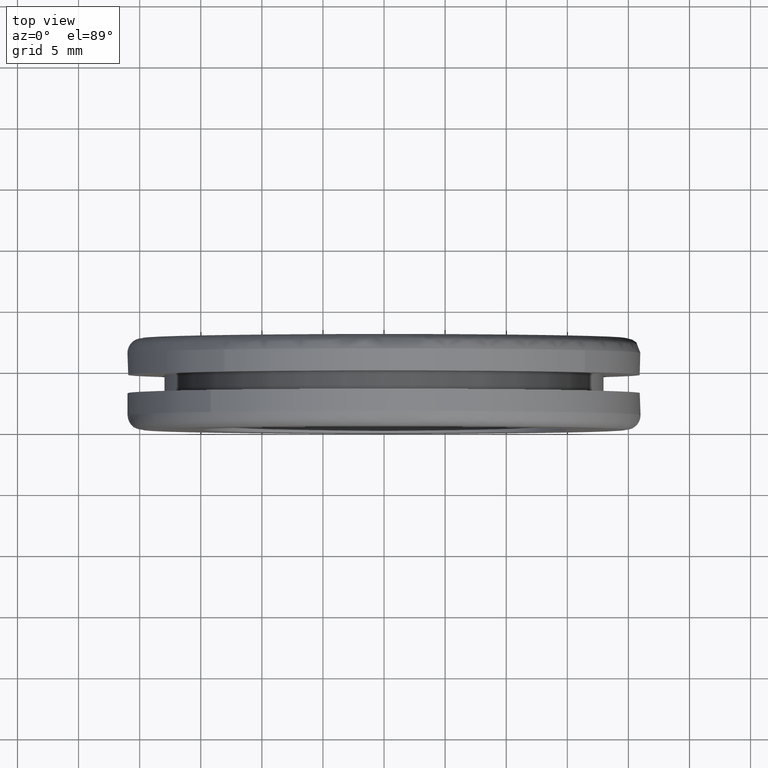
[diagram: clean part render]
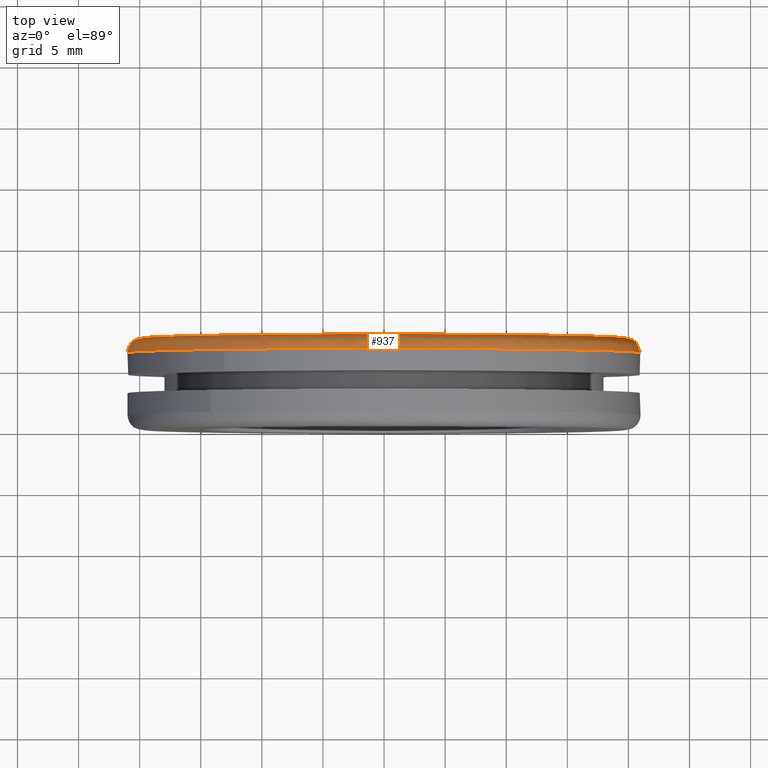
[diagram: same view with one face highlighted and labeled with its STEP entity id]
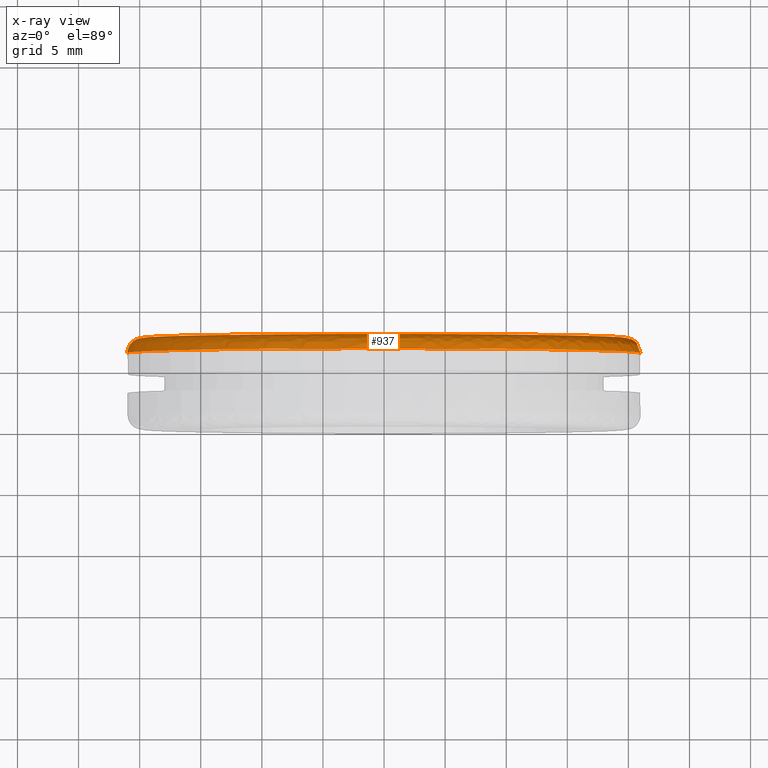
[diagram: x-ray of the same camera — body ghosted, the highlighted face saturated]
A machine part, top view. The second image highlights one B-rep face of the part: STEP entity #937.
The next image is the same camera in x-ray: the body ghosted, the highlighted face saturated — about 0% of this face is hidden behind the body in this view.
In plain terms, the highlighted face is a freeform B-spline surface patch.
Its self-contained STEP definition (entity closure, byte-faithful):
#468=CARTESIAN_POINT('',(-13.072806069207591,6.300000000011240,16.434772328112299));
#469=VERTEX_POINT('',#468);
#470=CARTESIAN_POINT('',(-21.0,6.300000000052002,8.851079E-016));
#471=VERTEX_POINT('',#470);
#472=CARTESIAN_POINT('',(-13.072806069207587,6.300000000011240,16.434772328112302));
#473=CARTESIAN_POINT('',(-20.999999999999943,6.300000000026920,10.129198581101342));
#474=CARTESIAN_POINT('',(-21.000000000000004,6.300000000052002,8.851079E-016));
#482=(BOUNDED_CURVE()B_SPLINE_CURVE(2,(#472,#473,#474),.UNSPECIFIED.,.F.,.U.)B_SPLINE_CURVE_WITH_KNOTS((3,3),(0.607863865415925,0.749999999999999),.UNSPECIFIED.)CURVE()GEOMETRIC_REPRESENTATION_ITEM()RATIONAL_B_SPLINE_CURVE((0.856305622490842,0.833477160127873,0.999999999999998))REPRESENTATION_ITEM(''));
#483=EDGE_CURVE('',#469,#471,#482,.T.);
#500=CARTESIAN_POINT('',(20.859544414485921,6.300000000055606,-2.424748815875383));
#501=VERTEX_POINT('',#500);
#515=CARTESIAN_POINT('',(16.434772329288549,6.299999999999930,13.072806067728861));
#516=VERTEX_POINT('',#515);
#517=CARTESIAN_POINT('',(20.859544414485928,6.300000000055606,-2.424748815875383));
#518=CARTESIAN_POINT('',(20.999999999999996,6.300000000000000,-1.216442411062318));
#519=CARTESIAN_POINT('',(21.0,6.300000000000000,-3.061516E-016));
#520=CARTESIAN_POINT('',(21.000000000000004,6.300000000000000,7.333527368817955));
#521=CARTESIAN_POINT('',(16.434772329288549,6.299999999999930,13.072806067728857));
#529=(BOUNDED_CURVE()B_SPLINE_CURVE(2,(#517,#518,#519,#520,#521),.UNSPECIFIED.,.F.,.U.)B_SPLINE_CURVE_WITH_KNOTS((3,2,3),(0.229999999999889,0.250000000000000,0.357863865402305),.UNSPECIFIED.)CURVE()GEOMETRIC_REPRESENTATION_ITEM()RATIONAL_B_SPLINE_CURVE((0.956886118190442,0.976568542494794,1.0,0.873629621074632,0.856305622495217))REPRESENTATION_ITEM(''));
#530=EDGE_CURVE('',#501,#516,#529,.T.);
#595=CARTESIAN_POINT('',(0.0,6.300000000000000,21.0));
#596=VERTEX_POINT('',#595);
#597=CARTESIAN_POINT('',(0.0,6.300000000000000,21.0));
#598=CARTESIAN_POINT('',(-7.333527369877913,6.300000000000001,20.999999999999996));
#599=CARTESIAN_POINT('',(-13.072806069207587,6.300000000011240,16.434772328112302));
#607=(BOUNDED_CURVE()B_SPLINE_CURVE(2,(#597,#598,#599),.UNSPECIFIED.,.F.,.U.)B_SPLINE_CURVE_WITH_KNOTS((3,3),(0.500000000000000,0.607863865415925),.UNSPECIFIED.)CURVE()GEOMETRIC_REPRESENTATION_ITEM()RATIONAL_B_SPLINE_CURVE((1.0,0.873629621058675,0.856305622490842))REPRESENTATION_ITEM(''));
#608=EDGE_CURVE('',#596,#469,#607,.T.);
#640=CARTESIAN_POINT('',(16.434772329288549,6.299999999999930,13.072806067728857));
#641=CARTESIAN_POINT('',(10.129198582265900,6.299999999999999,21.0));
#642=CARTESIAN_POINT('',(0.0,6.300000000000000,21.0));
#650=(BOUNDED_CURVE()B_SPLINE_CURVE(2,(#640,#641,#642),.UNSPECIFIED.,.F.,.U.)B_SPLINE_CURVE_WITH_KNOTS((3,3),(0.357863865402305,0.500000000000000),.UNSPECIFIED.)CURVE()GEOMETRIC_REPRESENTATION_ITEM()RATIONAL_B_SPLINE_CURVE((0.856305622495217,0.833477160111916,1.0))REPRESENTATION_ITEM(''));
#651=EDGE_CURVE('',#516,#596,#650,.T.);
#842=CARTESIAN_POINT('',(19.584905655962345,7.497110752785397,-2.276580406893847));
#843=CARTESIAN_POINT('',(19.716778334758423,7.497110752785396,-1.142109616844359));
#844=CARTESIAN_POINT('',(19.716778334758416,7.497110752785395,-3.621794E-015));
#845=CARTESIAN_POINT('',(19.716778334758427,7.497110752785394,19.716778334758409));
#846=CARTESIAN_POINT('',(4.829058E-015,7.497110752785395,19.716778334758416));
#847=CARTESIAN_POINT('',(-19.716778334758409,7.497110752785394,19.716778334758427));
#848=CARTESIAN_POINT('',(-19.716778334758416,7.497110752785395,6.036323E-015));
#849=CARTESIAN_POINT('',(20.952207806636945,7.592803943791779,-2.435517771270782));
#850=CARTESIAN_POINT('',(21.093287055048435,7.592803943791781,-1.221844947861489));
#851=CARTESIAN_POINT('',(21.093287055048425,7.592803943791780,-3.874646E-015));
#852=CARTESIAN_POINT('',(21.093287055048421,7.592803943791777,21.093287055048417));
#853=CARTESIAN_POINT('',(5.166195E-015,7.592803943791780,21.093287055048425));
#854=CARTESIAN_POINT('',(-21.093287055048417,7.592803943791777,21.093287055048425));
#855=CARTESIAN_POINT('',(-21.093287055048425,7.592803943791780,6.457743E-015));
#856=CARTESIAN_POINT('',(20.856643796430927,6.216331072732919,-2.424409259590359));
#857=CARTESIAN_POINT('',(20.997079575721664,6.216331072732920,-1.216272055298318));
#858=CARTESIAN_POINT('',(20.997079575721667,6.216331072732919,-3.856974E-015));
#859=CARTESIAN_POINT('',(20.997079575721664,6.216331072732920,20.997079575721664));
#860=CARTESIAN_POINT('',(5.142631E-015,6.216331072732919,20.997079575721667));
#861=CARTESIAN_POINT('',(-20.997079575721664,6.216331072732920,20.997079575721664));
#862=CARTESIAN_POINT('',(-20.997079575721667,6.216331072732919,6.428289E-015));
#870=(BOUNDED_SURFACE()B_SPLINE_SURFACE(2,2,((#842,#849,#856),(#843,#850,#857),(#844,#851,#858),(#845,#852,#859),(#846,#853,#860),(#847,#854,#861),(#848,#855,#862)),.UNSPECIFIED.,.F.,.F.,.U.)B_SPLINE_SURFACE_WITH_KNOTS((3,2,2,3),(3,3),(0.0,2.783125387559395,37.572225909523503,72.361326431487598),(0.0,2.186845457319874),.UNSPECIFIED.)GEOMETRIC_REPRESENTATION_ITEM()RATIONAL_B_SPLINE_SURFACE(((0.876476107372700,0.573569792434621,0.871620813974785),(0.894504543896973,0.585367680030376,0.889549380864171),(0.915966964431935,0.599412781759712,0.910892908998245),(0.647686451892679,0.423848842712185,0.644098552887400),(0.915966964431935,0.599412781759712,0.910892908998245),(0.647686451892679,0.423848842712185,0.644098552887400),(0.915966964431935,0.599412781759712,0.910892908998245)))REPRESENTATION_ITEM('')SURFACE());
#871=ORIENTED_EDGE('',*,*,#651,.F.);
#872=ORIENTED_EDGE('',*,*,#530,.F.);
#873=CARTESIAN_POINT('',(19.667570450064581,7.499999999999999,-2.286191740977825));
#874=VERTEX_POINT('',#873);
#875=CARTESIAN_POINT('',(19.667570450064581,7.499999999999999,-2.286191740977825));
#876=CARTESIAN_POINT('',(20.859544414376245,7.499999995718756,-2.424748815855713));
#877=CARTESIAN_POINT('',(20.859544414485924,6.300000000055606,-2.424748815875383));
#885=(BOUNDED_CURVE()B_SPLINE_CURVE(2,(#875,#876,#877),.UNSPECIFIED.,.F.,.U.)B_SPLINE_CURVE_WITH_KNOTS((3,3),(-1.736413117379730,-0.276558718110652),.UNSPECIFIED.)CURVE()GEOMETRIC_REPRESENTATION_ITEM()RATIONAL_B_SPLINE_CURVE((0.850203275032257,0.599621899853280,0.845789311865304))REPRESENTATION_ITEM(''));
#886=EDGE_CURVE('',#874,#501,#885,.T.);
#887=ORIENTED_EDGE('',*,*,#886,.F.);
#888=CARTESIAN_POINT('',(0.0,7.500000000000000,19.800000000000001));
#889=VERTEX_POINT('',#888);
#890=CARTESIAN_POINT('',(19.667570450064581,7.499999999999999,-2.286191740977825));
#891=CARTESIAN_POINT('',(19.800000000000004,7.500000000000001,-1.146931416193113));
#892=CARTESIAN_POINT('',(19.800000000000001,7.500000000000000,-3.061516E-016));
#893=CARTESIAN_POINT('',(19.800000000000001,7.500000000000000,19.800000000000001));
#894=CARTESIAN_POINT('',(0.0,7.500000000000000,19.800000000000001));
#902=(BOUNDED_CURVE()B_SPLINE_CURVE(2,(#890,#891,#892,#893,#894),.UNSPECIFIED.,.F.,.U.)B_SPLINE_CURVE_WITH_KNOTS((3,2,3),(0.229999999999061,0.250000000000000,0.500000000000000),.UNSPECIFIED.)CURVE()GEOMETRIC_REPRESENTATION_ITEM()RATIONAL_B_SPLINE_CURVE((0.956886118188811,0.976568542493824,1.0,0.707106781186547,1.0))REPRESENTATION_ITEM(''));
#903=EDGE_CURVE('',#874,#889,#902,.T.);
#904=ORIENTED_EDGE('',*,*,#903,.T.);
#905=CARTESIAN_POINT('',(-19.800000000222230,7.500000000000000,8.852452E-016));
#906=VERTEX_POINT('',#905);
#907=CARTESIAN_POINT('',(0.0,7.500000000000000,19.800000000000001));
#908=CARTESIAN_POINT('',(-19.799999999999901,7.500000000000000,19.800000000000001));
#909=CARTESIAN_POINT('',(-19.800000000222230,7.500000000000000,8.852452E-016));
#917=(BOUNDED_CURVE()B_SPLINE_CURVE(2,(#907,#908,#909),.UNSPECIFIED.,.F.,.U.)B_SPLINE_CURVE_WITH_KNOTS((3,3),(0.500000000000000,0.749999999999999),.UNSPECIFIED.)CURVE()GEOMETRIC_REPRESENTATION_ITEM()RATIONAL_B_SPLINE_CURVE((1.0,0.707106781186548,0.999999999999998))REPRESENTATION_ITEM(''));
#918=EDGE_CURVE('',#889,#906,#917,.T.);
#919=ORIENTED_EDGE('',*,*,#918,.T.);
#920=CARTESIAN_POINT('',(-19.800000000222230,7.500000000000000,8.852452E-016));
#921=CARTESIAN_POINT('',(-20.999999999895991,7.499999999555545,1.748501E-015));
#922=CARTESIAN_POINT('',(-21.0,6.300000000052003,8.851079E-016));
#930=(BOUNDED_CURVE()B_SPLINE_CURVE(2,(#920,#921,#922),.UNSPECIFIED.,.F.,.U.)B_SPLINE_CURVE_WITH_KNOTS((3,3),(-1.736413120688840,-0.276558718104465),.UNSPECIFIED.)CURVE()GEOMETRIC_REPRESENTATION_ITEM()RATIONAL_B_SPLINE_CURVE((0.888510408925025,0.626638727321098,0.883897567107214))REPRESENTATION_ITEM(''));
#931=EDGE_CURVE('',#906,#471,#930,.T.);
#932=ORIENTED_EDGE('',*,*,#931,.T.);
#933=ORIENTED_EDGE('',*,*,#483,.F.);
#934=ORIENTED_EDGE('',*,*,#608,.F.);
#935=EDGE_LOOP('',(#871,#872,#887,#904,#919,#932,#933,#934));
#936=FACE_OUTER_BOUND('',#935,.T.);
#937=ADVANCED_FACE('',(#936),#870,.T.);